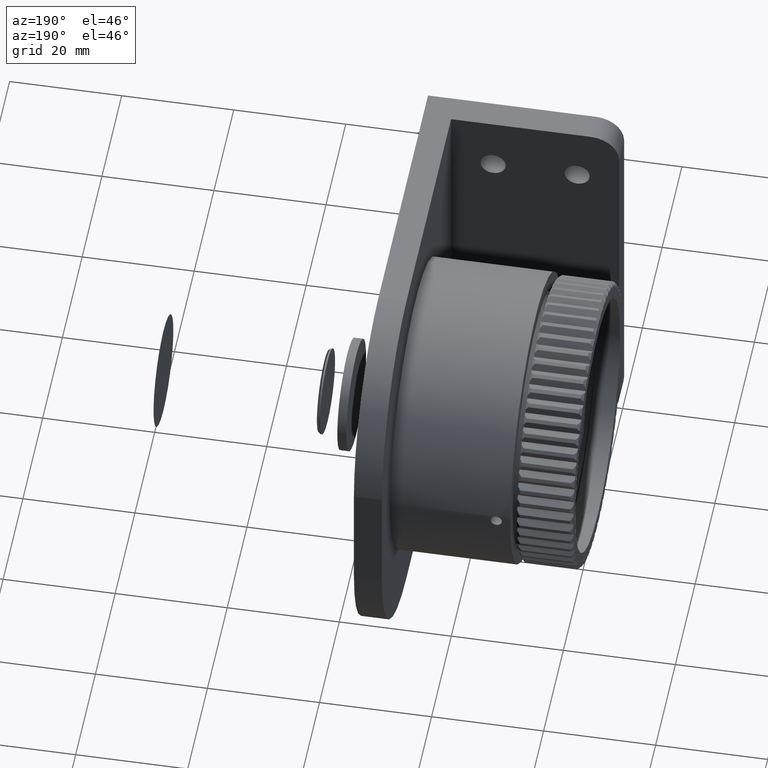
[diagram: clean part render]
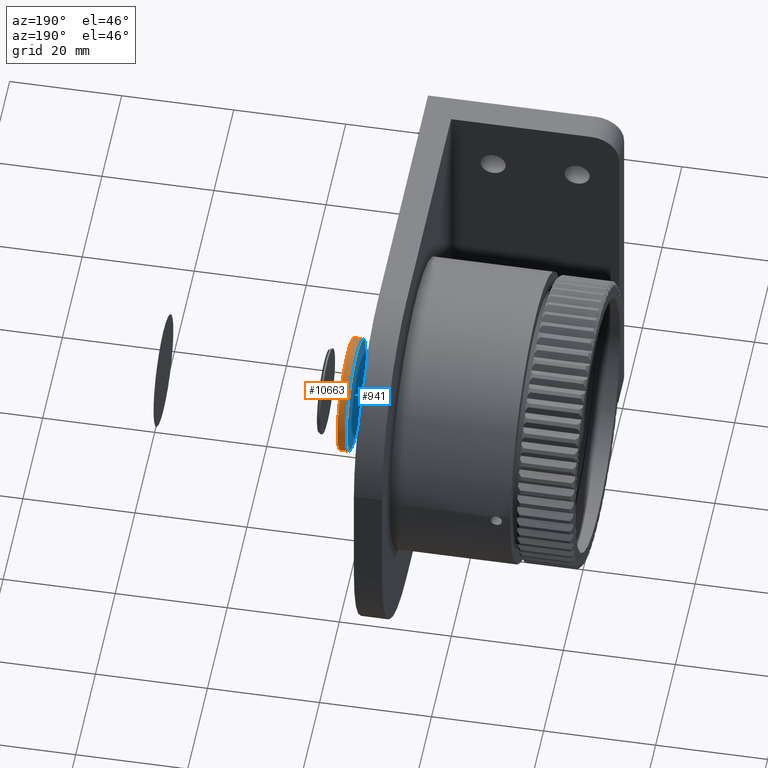
[diagram: same view with the hole feature highlighted: cylindrical wall and planar end face, labeled with their STEP entity ids]
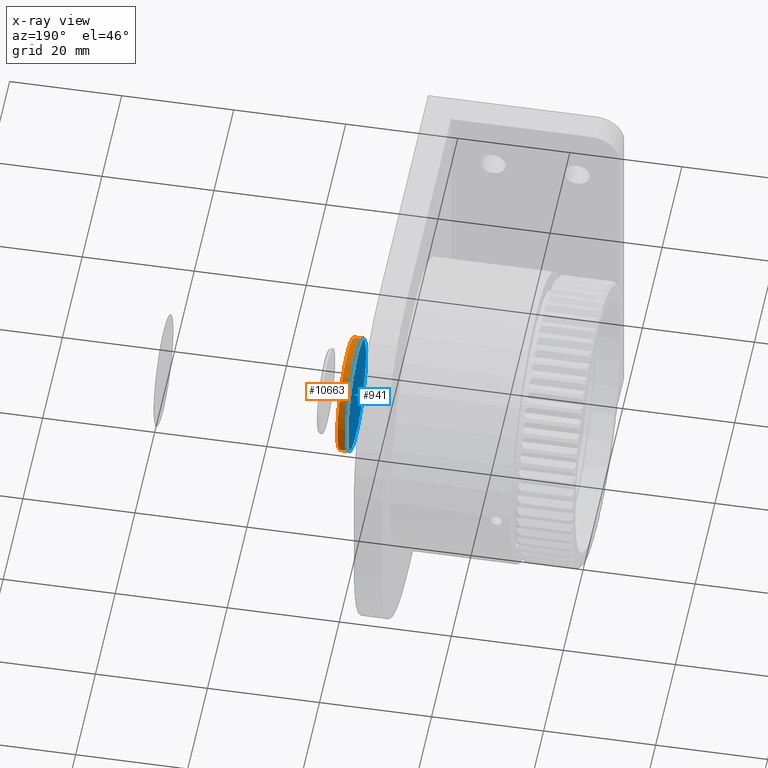
[diagram: x-ray of the same camera — body ghosted, the hole faces saturated]
A machine part, auxiliary view. The highlighted faces form one hole feature of diameter 20.005 mm: the cylindrical wall (entity #10663, orange) and its adjacent planar end face (entity #941, blue) — they share a circular edge in the B-rep.
The next image is the same camera in x-ray (body ghosted, the hole faces saturated) — the bore reads through the body.
Wall:
#60 = EDGE_LOOP ( 'NONE', ( #1795 ) ) ;
#858 = FACE_OUTER_BOUND ( 'NONE', #8341, .T. ) ;
#1056 = VERTEX_POINT ( 'NONE', #5454 ) ;
#1241 = AXIS2_PLACEMENT_3D ( 'NONE', #8933, #11129, #5768 ) ;
#1630 = CARTESIAN_POINT ( 'NONE',  ( 40.50999999999999801, 0.000000000000000000, 0.000000000000000000 ) ) ;
#1795 = ORIENTED_EDGE ( 'NONE', *, *, #6959, .F. ) ;
#2252 = AXIS2_PLACEMENT_3D ( 'NONE', #3042, #4104, #9671 ) ;
#2474 = CARTESIAN_POINT ( 'NONE',  ( 40.50999999999999801, 0.000000000000000000, -10.00252700000000061 ) ) ;
#2879 = CIRCLE ( 'NONE', #12121, 10.00252700000000061 ) ;
#3042 = CARTESIAN_POINT ( 'NONE',  ( -4.998071115347348048, 0.000000000000000000, 0.000000000000000000 ) ) ;
#4028 = FACE_OUTER_BOUND ( 'NONE', #60, .T. ) ;
#4104 = DIRECTION ( 'NONE',  ( 1.000000000000000000, -0.000000000000000000, -0.000000000000000000 ) ) ;
#5303 = CYLINDRICAL_SURFACE ( 'NONE', #2252, 10.00252700000000061 ) ;
#5454 = CARTESIAN_POINT ( 'NONE',  ( 42.10999999999999943, 0.000000000000000000, -10.00252700000000061 ) ) ;
#5768 = DIRECTION ( 'NONE',  ( 0.000000000000000000, 0.000000000000000000, -1.000000000000000000 ) ) ;
#6959 = EDGE_CURVE ( 'NONE', #1056, #1056, #8445, .T. ) ;
#6970 = VERTEX_POINT ( 'NONE', #2474 ) ;
#8341 = EDGE_LOOP ( 'NONE', ( #12726 ) ) ;
#8445 = CIRCLE ( 'NONE', #1241, 10.00252700000000061 ) ;
#8933 = CARTESIAN_POINT ( 'NONE',  ( 42.10999999999999943, 0.000000000000000000, 0.000000000000000000 ) ) ;
#9335 = EDGE_CURVE ( 'NONE', #6970, #6970, #2879, .T. ) ;
#9671 = DIRECTION ( 'NONE',  ( 0.000000000000000000, 0.000000000000000000, -1.000000000000000000 ) ) ;
#10240 = DIRECTION ( 'NONE',  ( 1.000000000000000000, -0.000000000000000000, -0.000000000000000000 ) ) ;
#10663 = ADVANCED_FACE ( 'NONE', ( #4028, #858 ), #5303, .T. ) ;
#11129 = DIRECTION ( 'NONE',  ( 1.000000000000000000, -0.000000000000000000, -0.000000000000000000 ) ) ;
#12121 = AXIS2_PLACEMENT_3D ( 'NONE', #1630, #10240, #13404 ) ;
#12726 = ORIENTED_EDGE ( 'NONE', *, *, #9335, .T. ) ;
#13404 = DIRECTION ( 'NONE',  ( 0.000000000000000000, 0.000000000000000000, -1.000000000000000000 ) ) ;
End face:
#361 = AXIS2_PLACEMENT_3D ( 'NONE', #11244, #12642, #1711 ) ;
#941 = ADVANCED_FACE ( 'NONE', ( #10470 ), #7068, .T. ) ;
#1630 = CARTESIAN_POINT ( 'NONE',  ( 40.50999999999999801, 0.000000000000000000, 0.000000000000000000 ) ) ;
#1711 = DIRECTION ( 'NONE',  ( 0.000000000000000000, 0.000000000000000000, 1.000000000000000000 ) ) ;
#2474 = CARTESIAN_POINT ( 'NONE',  ( 40.50999999999999801, 0.000000000000000000, -10.00252700000000061 ) ) ;
#2879 = CIRCLE ( 'NONE', #12121, 10.00252700000000061 ) ;
#3390 = EDGE_LOOP ( 'NONE', ( #7415 ) ) ;
#6970 = VERTEX_POINT ( 'NONE', #2474 ) ;
#7068 = PLANE ( 'NONE',  #361 ) ;
#7415 = ORIENTED_EDGE ( 'NONE', *, *, #9335, .F. ) ;
#9335 = EDGE_CURVE ( 'NONE', #6970, #6970, #2879, .T. ) ;
#10240 = DIRECTION ( 'NONE',  ( 1.000000000000000000, -0.000000000000000000, -0.000000000000000000 ) ) ;
#10470 = FACE_OUTER_BOUND ( 'NONE', #3390, .T. ) ;
#11244 = CARTESIAN_POINT ( 'NONE',  ( 40.50999999999999801, 0.000000000000000000, 0.000000000000000000 ) ) ;
#12121 = AXIS2_PLACEMENT_3D ( 'NONE', #1630, #10240, #13404 ) ;
#12642 = DIRECTION ( 'NONE',  ( -1.000000000000000000, 0.000000000000000000, 0.000000000000000000 ) ) ;
#13404 = DIRECTION ( 'NONE',  ( 0.000000000000000000, 0.000000000000000000, -1.000000000000000000 ) ) ;